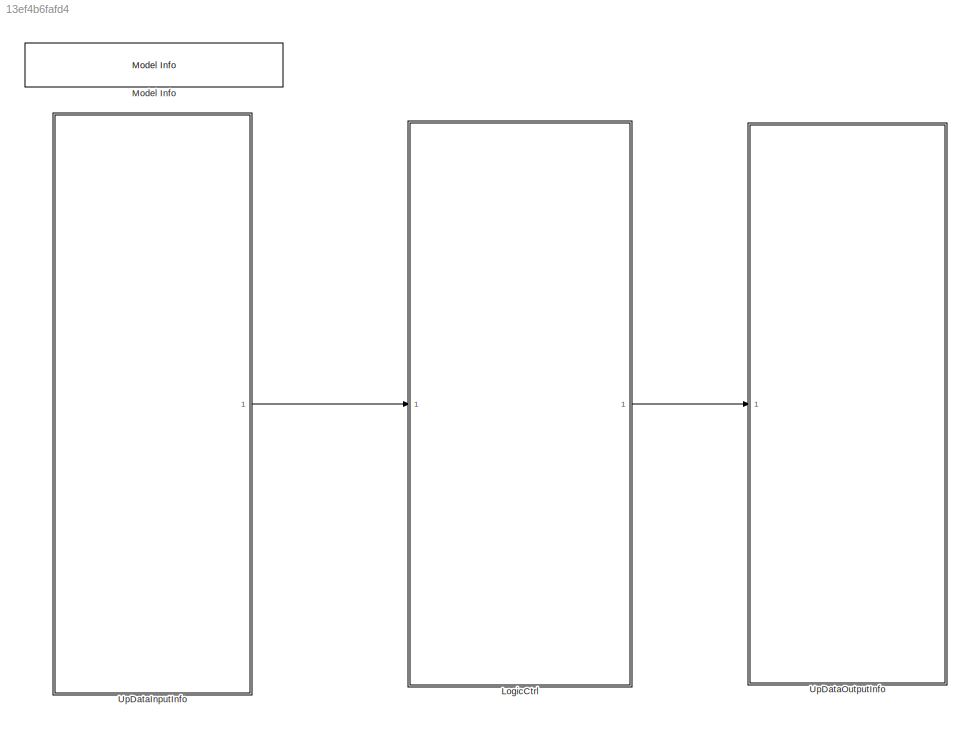
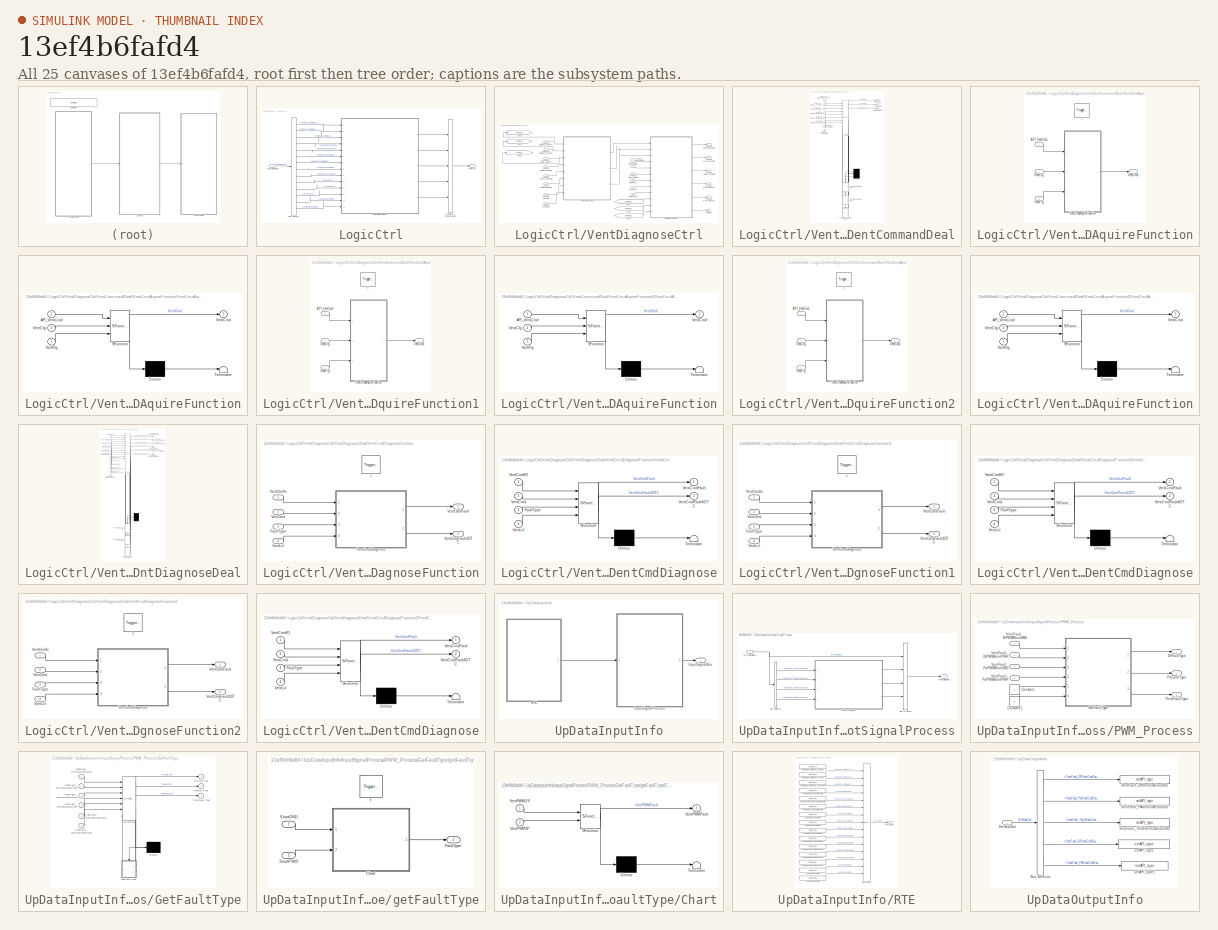
[diagram: thumbnail index - all 25 canvases of the model, root first then tree order]
MODEL slx_13ef4b6fafd4
KIND model
BLOCK [SubSystem] LogicCtrl
  Ports = [1, 1]
  Priority = 2
  RTWFcnNameOpts = Use subsystem name
  RTWSystemCode = Nonreusable function
  RequestExecContextInheritance = off
  TreatAsAtomicUnit = on
BLOCK [BusSelector] LogicCtrl/Bus Selector
  OutputAsBus = off
  OutputSignals = Rte_SignalBUs.VentFault_D_SimuIndex_DRVent,Rte_SignalBUs.VentFault_D_SimuIndex_PAVent,Rte_SignalBUs.VentFault_D_SimuIndex_ThirdVent,Rte_SignalBUs.VentFault_DriverEnableConfig,Rte_SignalBUs.VentFault_PassengerEnableConfig,Rte_SignalBUs.VentFault_ThirdEnableConfig,Rte_SignalBUs.VentFault_DrVentCmdIo,Rte_SignalBUs.VentFault_PaVentCmdIo,Rte_SignalBUs.VentFault_ThirdVentCmdIo,DrFaultType,PaFaultType,Th...<+80ch>
  Ports = [1, 14]
BLOCK [Outport] LogicCtrl/HeatOut
  IconDisplay = Port number
BLOCK [Inport] LogicCtrl/InputSignalBus
  IconDisplay = Port number
BLOCK [BusCreator] LogicCtrl/MainVent_OutputLvlSts
  DisplayOption = bar
  InheritFromInputs = on
  Inputs = 5
  Ports = [5, 1]
BLOCK [SubSystem] LogicCtrl/VentDiagnoseCtrl
  AttributesFormatString = %<Description>
  Description = 通风诊断逻辑处理
  Ports = [14, 5]
  RequestExecContextInheritance = off
BLOCK [Inport] LogicCtrl/VentDiagnoseCtrl/DrFaultType
  IconDisplay = Port number
  Port = 10
BLOCK [From] LogicCtrl/VentDiagnoseCtrl/From
  GotoTag = VentFault_D_SimuIndex_DRVent
BLOCK [From] LogicCtrl/VentDiagnoseCtrl/From1
  GotoTag = VentFault_D_SimuIndex_PAVent
BLOCK [From] LogicCtrl/VentDiagnoseCtrl/From2
  GotoTag = VentFault_D_SimuIndex_ThirdVent
BLOCK [Goto] LogicCtrl/VentDiagnoseCtrl/Goto
  GotoTag = VentFault_D_SimuIndex_DRVent
BLOCK [Goto] LogicCtrl/VentDiagnoseCtrl/Goto1
  GotoTag = VentFault_D_SimuIndex_PAVent
BLOCK [Goto] LogicCtrl/VentDiagnoseCtrl/Goto2
  GotoTag = VentFault_D_SimuIndex_ThirdVent
BLOCK [Inport] LogicCtrl/VentDiagnoseCtrl/PaFaultType
  IconDisplay = Port number
  Port = 11
BLOCK [Terminator] LogicCtrl/VentDiagnoseCtrl/Terminator
BLOCK [Inport] LogicCtrl/VentDiagnoseCtrl/ThirdFaultType
  IconDisplay = Port number
  Port = 12
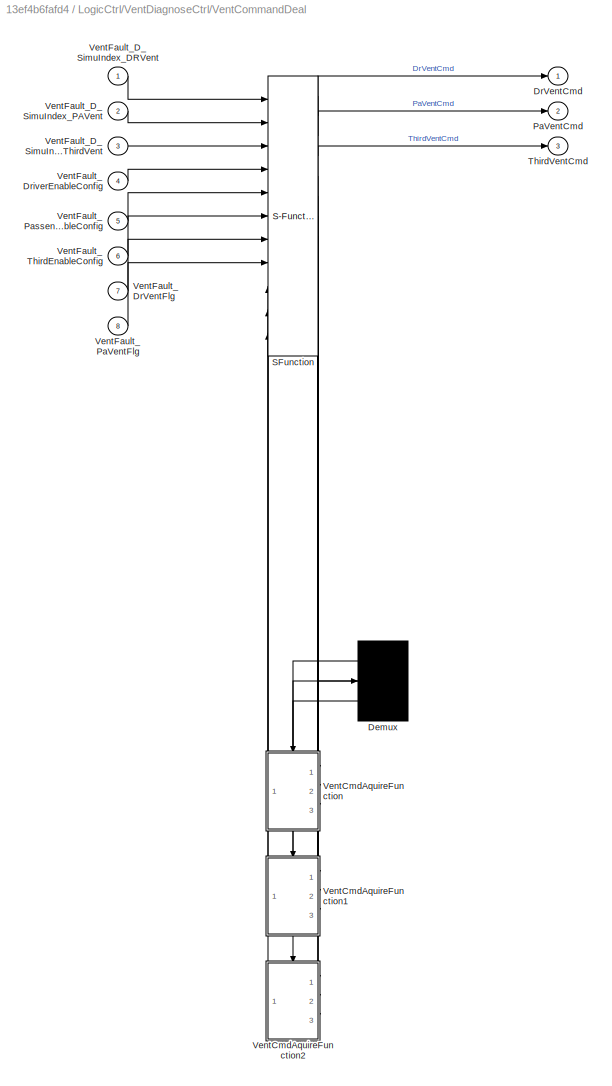
BLOCK [SubSystem] LogicCtrl/VentDiagnoseCtrl/VentCommandDeal
  ErrorFcn = Stateflow.Translate.translate
  PermitHierarchicalResolution = ExplicitOnly
  Ports = [8, 3]
  RequestExecContextInheritance = off
  SFBlockType = Chart
  TreatAsAtomicUnit = on
BLOCK [Demux] LogicCtrl/VentDiagnoseCtrl/VentCommandDeal/ Demux 
  Outputs = 3
  Ports = [1, 3]
BLOCK [S-Function] LogicCtrl/VentDiagnoseCtrl/VentCommandDeal/ SFunction 
  EnableBusSupport = on
  FunctionName = sf_sfun
  Parameters = TRUE
  PortCounts = [11 13]
  Ports = [11, 13]
  SFcnIsStateOwnerBlock = off
  SFunctionDeploymentMode = off
  Tag = Stateflow S-Function Appl_VentFault_CtrlModel 1
BLOCK [Outport] LogicCtrl/VentDiagnoseCtrl/VentCommandDeal/DrVentCmd
  IconDisplay = Port number
BLOCK [Outport] LogicCtrl/VentDiagnoseCtrl/VentCommandDeal/PaVentCmd
  IconDisplay = Port number
  Port = 2
BLOCK [Outport] LogicCtrl/VentDiagnoseCtrl/VentCommandDeal/ThirdVentCmd
  IconDisplay = Port number
  Port = 3
BLOCK [SubSystem] LogicCtrl/VentDiagnoseCtrl/VentCommandDeal/VentCmdAquireFunction
  Ports = [3, 1, 0, 1]
  PreDeleteFcn = Stateflow.SLINSF.SimulinkMan.removePreDeleteFcn
  RequestExecContextInheritance = off
  UndoDeleteFcn = Stateflow.SLINSF.SimulinkMan.restorePreDeleteFcn
BLOCK [Inport] LogicCtrl/VentDiagnoseCtrl/VentCommandDeal/VentCmdAquireFunction/API_VentCmd
  IconDisplay = Port number
BLOCK [Inport] LogicCtrl/VentDiagnoseCtrl/VentCommandDeal/VentCmdAquireFunction/VentCfg
  IconDisplay = Port number
  Port = 2
BLOCK [Outport] LogicCtrl/VentDiagnoseCtrl/VentCommandDeal/VentCmdAquireFunction/VentCmd
  IconDisplay = Port number
BLOCK [SubSystem] LogicCtrl/VentDiagnoseCtrl/VentCommandDeal/VentCmdAquireFunction/VentCmdAquireFunction
  ErrorFcn = Stateflow.Translate.translate
  PermitHierarchicalResolution = ExplicitOnly
  Ports = [3, 1]
  RequestExecContextInheritance = off
  SFBlockType = Chart
  TreatAsAtomicUnit = on
BLOCK [Demux] LogicCtrl/VentDiagnoseCtrl/VentCommandDeal/VentCmdAquireFunction/VentCmdAquireFunction/ Demux 
  Outputs = 1
  Ports = [1, 1]
BLOCK [S-Function] LogicCtrl/VentDiagnoseCtrl/VentCommandDeal/VentCmdAquireFunction/VentCmdAquireFunction/ SFunction 
  EnableBusSupport = off
  FunctionName = sf_sfun
  Parameters = FALSE,TRUE
  PortCounts = [3 2]
  Ports = [3, 2]
  SFcnIsStateOwnerBlock = off
  SFunctionDeploymentMode = off
  Tag = Stateflow S-Function Appl_VentFault_CtrlModel 2
BLOCK [Terminator] LogicCtrl/VentDiagnoseCtrl/VentCommandDeal/VentCmdAquireFunction/VentCmdAquireFunction/ Terminator 
BLOCK [Inport] LogicCtrl/VentDiagnoseCtrl/VentCommandDeal/VentCmdAquireFunction/VentCmdAquireFunction/API_VentCmd
  IconDisplay = Port number
BLOCK [Inport] LogicCtrl/VentDiagnoseCtrl/VentCommandDeal/VentCmdAquireFunction/VentCmdAquireFunction/VentCfg
  IconDisplay = Port number
  Port = 2
BLOCK [Outport] LogicCtrl/VentDiagnoseCtrl/VentCommandDeal/VentCmdAquireFunction/VentCmdAquireFunction/VentCmd
  IconDisplay = Port number
BLOCK [Inport] LogicCtrl/VentDiagnoseCtrl/VentCommandDeal/VentCmdAquireFunction/VentCmdAquireFunction/VentFlg
  IconDisplay = Port number
  Port = 3
BLOCK [Inport] LogicCtrl/VentDiagnoseCtrl/VentCommandDeal/VentCmdAquireFunction/VentFlg
  IconDisplay = Port number
  Port = 3
BLOCK [TriggerPort] LogicCtrl/VentDiagnoseCtrl/VentCommandDeal/VentCmdAquireFunction/f
  CopyFcn = Stateflow.SLINSF.SimulinkMan.removeBlockPreDeleteFcn
  Ports = []
  PreDeleteFcn = Stateflow.SLINSF.SimulinkMan.unsafePredeleteFcn
  StatesWhenEnabling = held
  TriggerType = function-call
  VariantControl = (inherit)
BLOCK [SubSystem] LogicCtrl/VentDiagnoseCtrl/VentCommandDeal/VentCmdAquireFunction1
  Ports = [3, 1, 0, 1]
  PreDeleteFcn = Stateflow.SLINSF.SimulinkMan.removePreDeleteFcn
  RequestExecContextInheritance = off
  UndoDeleteFcn = Stateflow.SLINSF.SimulinkMan.restorePreDeleteFcn
BLOCK [Inport] LogicCtrl/VentDiagnoseCtrl/VentCommandDeal/VentCmdAquireFunction1/API_VentCmd
  IconDisplay = Port number
BLOCK [Inport] LogicCtrl/VentDiagnoseCtrl/VentCommandDeal/VentCmdAquireFunction1/VentCfg
  IconDisplay = Port number
  Port = 2
BLOCK [Outport] LogicCtrl/VentDiagnoseCtrl/VentCommandDeal/VentCmdAquireFunction1/VentCmd
  IconDisplay = Port number
BLOCK [SubSystem] LogicCtrl/VentDiagnoseCtrl/VentCommandDeal/VentCmdAquireFunction1/VentCmdAquireFunction
  ErrorFcn = Stateflow.Translate.translate
  PermitHierarchicalResolution = ExplicitOnly
  Ports = [3, 1]
  RequestExecContextInheritance = off
  SFBlockType = Chart
  TreatAsAtomicUnit = on
BLOCK [Demux] LogicCtrl/VentDiagnoseCtrl/VentCommandDeal/VentCmdAquireFunction1/VentCmdAquireFunction/ Demux 
  Outputs = 1
  Ports = [1, 1]
BLOCK [S-Function] LogicCtrl/VentDiagnoseCtrl/VentCommandDeal/VentCmdAquireFunction1/VentCmdAquireFunction/ SFunction 
  EnableBusSupport = off
  FunctionName = sf_sfun
  Parameters = FALSE,TRUE
  PortCounts = [3 2]
  Ports = [3, 2]
  SFcnIsStateOwnerBlock = off
  SFunctionDeploymentMode = off
  Tag = Stateflow S-Function Appl_VentFault_CtrlModel 5
BLOCK [Terminator] LogicCtrl/VentDiagnoseCtrl/VentCommandDeal/VentCmdAquireFunction1/VentCmdAquireFunction/ Terminator 
BLOCK [Inport] LogicCtrl/VentDiagnoseCtrl/VentCommandDeal/VentCmdAquireFunction1/VentCmdAquireFunction/API_VentCmd
  IconDisplay = Port number
BLOCK [Inport] LogicCtrl/VentDiagnoseCtrl/VentCommandDeal/VentCmdAquireFunction1/VentCmdAquireFunction/VentCfg
  IconDisplay = Port number
  Port = 2
BLOCK [Outport] LogicCtrl/VentDiagnoseCtrl/VentCommandDeal/VentCmdAquireFunction1/VentCmdAquireFunction/VentCmd
  IconDisplay = Port number
BLOCK [Inport] LogicCtrl/VentDiagnoseCtrl/VentCommandDeal/VentCmdAquireFunction1/VentCmdAquireFunction/VentFlg
  IconDisplay = Port number
  Port = 3
BLOCK [Inport] LogicCtrl/VentDiagnoseCtrl/VentCommandDeal/VentCmdAquireFunction1/VentFlg
  IconDisplay = Port number
  Port = 3
BLOCK [TriggerPort] LogicCtrl/VentDiagnoseCtrl/VentCommandDeal/VentCmdAquireFunction1/f
  CopyFcn = Stateflow.SLINSF.SimulinkMan.removeBlockPreDeleteFcn
  Ports = []
  PreDeleteFcn = Stateflow.SLINSF.SimulinkMan.unsafePredeleteFcn
  StatesWhenEnabling = held
  TriggerType = function-call
  VariantControl = (inherit)
BLOCK [SubSystem] LogicCtrl/VentDiagnoseCtrl/VentCommandDeal/VentCmdAquireFunction2
  Ports = [3, 1, 0, 1]
  PreDeleteFcn = Stateflow.SLINSF.SimulinkMan.removePreDeleteFcn
  RequestExecContextInheritance = off
  UndoDeleteFcn = Stateflow.SLINSF.SimulinkMan.restorePreDeleteFcn
BLOCK [Inport] LogicCtrl/VentDiagnoseCtrl/VentCommandDeal/VentCmdAquireFunction2/API_VentCmd
  IconDisplay = Port number
BLOCK [Inport] LogicCtrl/VentDiagnoseCtrl/VentCommandDeal/VentCmdAquireFunction2/VentCfg
  IconDisplay = Port number
  Port = 2
BLOCK [Outport] LogicCtrl/VentDiagnoseCtrl/VentCommandDeal/VentCmdAquireFunction2/VentCmd
  IconDisplay = Port number
BLOCK [SubSystem] LogicCtrl/VentDiagnoseCtrl/VentCommandDeal/VentCmdAquireFunction2/VentCmdAquireFunction
  ErrorFcn = Stateflow.Translate.translate
  PermitHierarchicalResolution = ExplicitOnly
  Ports = [3, 1]
  RequestExecContextInheritance = off
  SFBlockType = Chart
  TreatAsAtomicUnit = on
BLOCK [Demux] LogicCtrl/VentDiagnoseCtrl/VentCommandDeal/VentCmdAquireFunction2/VentCmdAquireFunction/ Demux 
  Outputs = 1
  Ports = [1, 1]
BLOCK [S-Function] LogicCtrl/VentDiagnoseCtrl/VentCommandDeal/VentCmdAquireFunction2/VentCmdAquireFunction/ SFunction 
  EnableBusSupport = off
  FunctionName = sf_sfun
  Parameters = FALSE,TRUE
  PortCounts = [3 2]
  Ports = [3, 2]
  SFcnIsStateOwnerBlock = off
  SFunctionDeploymentMode = off
  Tag = Stateflow S-Function Appl_VentFault_CtrlModel 6
BLOCK [Terminator] LogicCtrl/VentDiagnoseCtrl/VentCommandDeal/VentCmdAquireFunction2/VentCmdAquireFunction/ Terminator 
BLOCK [Inport] LogicCtrl/VentDiagnoseCtrl/VentCommandDeal/VentCmdAquireFunction2/VentCmdAquireFunction/API_VentCmd
  IconDisplay = Port number
BLOCK [Inport] LogicCtrl/VentDiagnoseCtrl/VentCommandDeal/VentCmdAquireFunction2/VentCmdAquireFunction/VentCfg
  IconDisplay = Port number
  Port = 2
BLOCK [Outport] LogicCtrl/VentDiagnoseCtrl/VentCommandDeal/VentCmdAquireFunction2/VentCmdAquireFunction/VentCmd
  IconDisplay = Port number
BLOCK [Inport] LogicCtrl/VentDiagnoseCtrl/VentCommandDeal/VentCmdAquireFunction2/VentCmdAquireFunction/VentFlg
  IconDisplay = Port number
  Port = 3
BLOCK [Inport] LogicCtrl/VentDiagnoseCtrl/VentCommandDeal/VentCmdAquireFunction2/VentFlg
  IconDisplay = Port number
  Port = 3
BLOCK [TriggerPort] LogicCtrl/VentDiagnoseCtrl/VentCommandDeal/VentCmdAquireFunction2/f
  CopyFcn = Stateflow.SLINSF.SimulinkMan.removeBlockPreDeleteFcn
  Ports = []
  PreDeleteFcn = Stateflow.SLINSF.SimulinkMan.unsafePredeleteFcn
  StatesWhenEnabling = held
  TriggerType = function-call
  VariantControl = (inherit)
BLOCK [Inport] LogicCtrl/VentDiagnoseCtrl/VentCommandDeal/VentFault_D_SimuIndex_DRVent
  IconDisplay = Port number
BLOCK [Inport] LogicCtrl/VentDiagnoseCtrl/VentCommandDeal/VentFault_D_SimuIndex_PAVent
  IconDisplay = Port number
  Port = 2
BLOCK [Inport] LogicCtrl/VentDiagnoseCtrl/VentCommandDeal/VentFault_D_SimuIndex_ThirdVent
  IconDisplay = Port number
  Port = 3
BLOCK [Inport] LogicCtrl/VentDiagnoseCtrl/VentCommandDeal/VentFault_DrVentFlg
  IconDisplay = Port number
  Port = 7
BLOCK [Inport] LogicCtrl/VentDiagnoseCtrl/VentCommandDeal/VentFault_DriverEnableConfig
  IconDisplay = Port number
  Port = 4
BLOCK [Inport] LogicCtrl/VentDiagnoseCtrl/VentCommandDeal/VentFault_PaVentFlg
  IconDisplay = Port number
  Port = 8
BLOCK [Inport] LogicCtrl/VentDiagnoseCtrl/VentCommandDeal/VentFault_PassengerEnableConfig
  IconDisplay = Port number
  Port = 5
BLOCK [Inport] LogicCtrl/VentDiagnoseCtrl/VentCommandDeal/VentFault_ThirdEnableConfig
  IconDisplay = Port number
  Port = 6
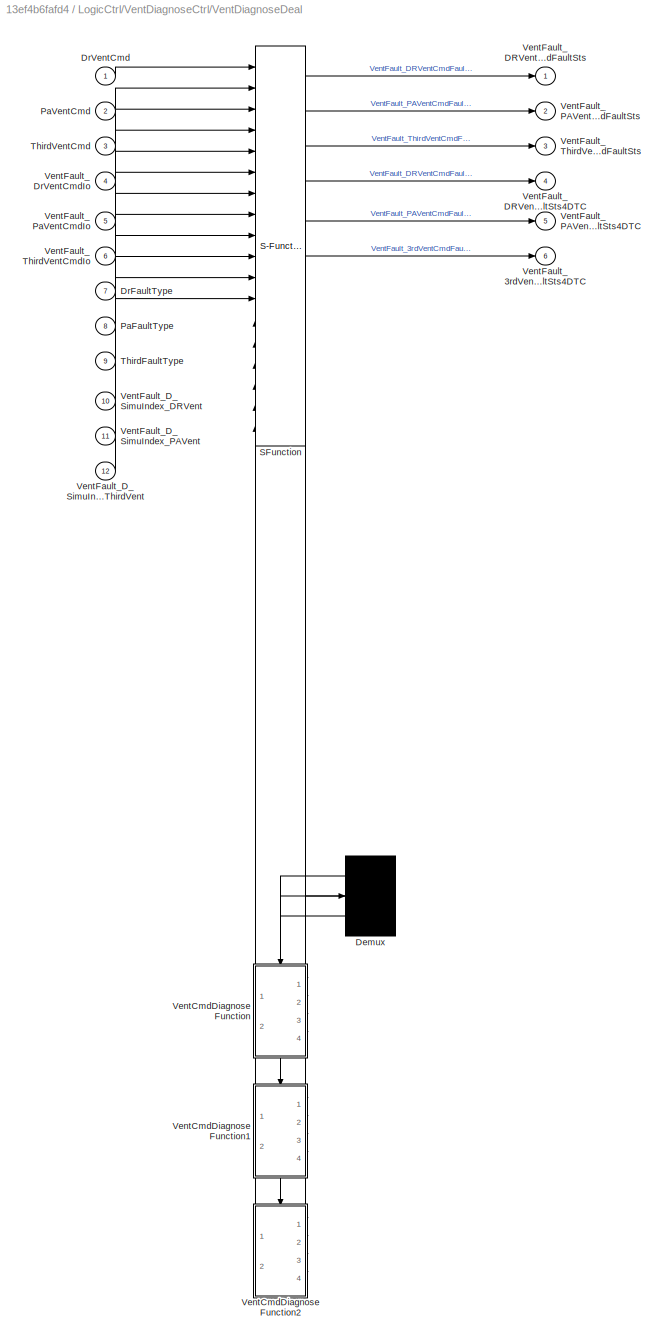
BLOCK [SubSystem] LogicCtrl/VentDiagnoseCtrl/VentDiagnoseDeal
  ErrorFcn = Stateflow.Translate.translate
  PermitHierarchicalResolution = ExplicitOnly
  Ports = [12, 6]
  RequestExecContextInheritance = off
  SFBlockType = Chart
  TreatAsAtomicUnit = on
BLOCK [Demux] LogicCtrl/VentDiagnoseCtrl/VentDiagnoseDeal/ Demux 
  Outputs = 3
  Ports = [1, 3]
BLOCK [S-Function] LogicCtrl/VentDiagnoseCtrl/VentDiagnoseDeal/ SFunction 
  EnableBusSupport = on
  FunctionName = sf_sfun
  PortCounts = [18 19]
  Ports = [18, 19]
  SFcnIsStateOwnerBlock = off
  SFunctionDeploymentMode = off
  Tag = Stateflow S-Function Appl_VentFault_CtrlModel 3
BLOCK [Inport] LogicCtrl/VentDiagnoseCtrl/VentDiagnoseDeal/DrFaultType
  IconDisplay = Port number
  Port = 7
BLOCK [Inport] LogicCtrl/VentDiagnoseCtrl/VentDiagnoseDeal/DrVentCmd
  IconDisplay = Port number
BLOCK [Inport] LogicCtrl/VentDiagnoseCtrl/VentDiagnoseDeal/PaFaultType
  IconDisplay = Port number
  Port = 8
BLOCK [Inport] LogicCtrl/VentDiagnoseCtrl/VentDiagnoseDeal/PaVentCmd
  IconDisplay = Port number
  Port = 2
BLOCK [Inport] LogicCtrl/VentDiagnoseCtrl/VentDiagnoseDeal/ThirdFaultType
  IconDisplay = Port number
  Port = 9
BLOCK [Inport] LogicCtrl/VentDiagnoseCtrl/VentDiagnoseDeal/ThirdVentCmd
  IconDisplay = Port number
  Port = 3
BLOCK [SubSystem] LogicCtrl/VentDiagnoseCtrl/VentDiagnoseDeal/VentCmdDiagnoseFunction
  Ports = [4, 2, 0, 1]
  PreDeleteFcn = Stateflow.SLINSF.SimulinkMan.removePreDeleteFcn
  RequestExecContextInheritance = off
  UndoDeleteFcn = Stateflow.SLINSF.SimulinkMan.restorePreDeleteFcn
BLOCK [Inport] LogicCtrl/VentDiagnoseCtrl/VentDiagnoseDeal/VentCmdDiagnoseFunction/FaultType
  IconDisplay = Port number
  Port = 3
BLOCK [Inport] LogicCtrl/VentDiagnoseCtrl/VentDiagnoseDeal/VentCmdDiagnoseFunction/VentCmd
  IconDisplay = Port number
  Port = 2
BLOCK [SubSystem] LogicCtrl/VentDiagnoseCtrl/VentDiagnoseDeal/VentCmdDiagnoseFunction/VentCmdDiagnose
  ErrorFcn = Stateflow.Translate.translate
  PermitHierarchicalResolution = ExplicitOnly
  Ports = [4, 2]
  RequestExecContextInheritance = off
  SFBlockType = Chart
  TreatAsAtomicUnit = on
BLOCK [Demux] LogicCtrl/VentDiagnoseCtrl/VentDiagnoseDeal/VentCmdDiagnoseFunction/VentCmdDiagnose/ Demux 
  Outputs = 1
  Ports = [1, 1]
BLOCK [S-Function] LogicCtrl/VentDiagnoseCtrl/VentDiagnoseDeal/VentCmdDiagnoseFunction/VentCmdDiagnose/ SFunction 
  EnableBusSupport = off
  FunctionName = sf_sfun
  Parameters = CAL_VentCmdOpenTime,CAL_VentCmdShortTime,FALSE,TRUE
  PortCounts = [4 3]
  Ports = [4, 3]
  SFcnIsStateOwnerBlock = off
  SFunctionDeploymentMode = off
  Tag = Stateflow S-Function Appl_VentFault_CtrlModel 4
BLOCK [Terminator] LogicCtrl/VentDiagnoseCtrl/VentDiagnoseDeal/VentCmdDiagnoseFunction/VentCmdDiagnose/ Terminator 
BLOCK [Inport] LogicCtrl/VentDiagnoseCtrl/VentDiagnoseDeal/VentCmdDiagnoseFunction/VentCmdDiagnose/FaultType
  IconDisplay = Port number
  Port = 3
BLOCK [Inport] LogicCtrl/VentDiagnoseCtrl/VentDiagnoseDeal/VentCmdDiagnoseFunction/VentCmdDiagnose/VentCmd
  IconDisplay = Port number
  Port = 2
BLOCK [Outport] LogicCtrl/VentDiagnoseCtrl/VentDiagnoseDeal/VentCmdDiagnoseFunction/VentCmdDiagnose/VentCmdFault
  IconDisplay = Port number
BLOCK [Outport] LogicCtrl/VentDiagnoseCtrl/VentDiagnoseDeal/VentCmdDiagnoseFunction/VentCmdDiagnose/VentCmdFault4DTC
  IconDisplay = Port number
  Port = 2
BLOCK [Inport] LogicCtrl/VentDiagnoseCtrl/VentDiagnoseDeal/VentCmdDiagnoseFunction/VentCmdDiagnose/VentCmdIO
  IconDisplay = Port number
BLOCK [Inport] LogicCtrl/VentDiagnoseCtrl/VentDiagnoseDeal/VentCmdDiagnoseFunction/VentCmdDiagnose/VentLvl
  IconDisplay = Port number
  Port = 4
BLOCK [Outport] LogicCtrl/VentDiagnoseCtrl/VentDiagnoseDeal/VentCmdDiagnoseFunction/VentCmdFault
  IconDisplay = Port number
BLOCK [Outport] LogicCtrl/VentDiagnoseCtrl/VentDiagnoseDeal/VentCmdDiagnoseFunction/VentCmdFault4DTC
  IconDisplay = Port number
  Port = 2
BLOCK [Inport] LogicCtrl/VentDiagnoseCtrl/VentDiagnoseDeal/VentCmdDiagnoseFunction/VentCmdIo
  IconDisplay = Port number
BLOCK [Inport] LogicCtrl/VentDiagnoseCtrl/VentDiagnoseDeal/VentCmdDiagnoseFunction/VentLvl
  IconDisplay = Port number
  Port = 4
BLOCK [TriggerPort] LogicCtrl/VentDiagnoseCtrl/VentDiagnoseDeal/VentCmdDiagnoseFunction/f
  CopyFcn = Stateflow.SLINSF.SimulinkMan.removeBlockPreDeleteFcn
  Ports = []
  PreDeleteFcn = Stateflow.SLINSF.SimulinkMan.unsafePredeleteFcn
  StatesWhenEnabling = held
  TriggerType = function-call
  VariantControl = (inherit)
BLOCK [SubSystem] LogicCtrl/VentDiagnoseCtrl/VentDiagnoseDeal/VentCmdDiagnoseFunction1
  Ports = [4, 2, 0, 1]
  PreDeleteFcn = Stateflow.SLINSF.SimulinkMan.removePreDeleteFcn
  RequestExecContextInheritance = off
  UndoDeleteFcn = Stateflow.SLINSF.SimulinkMan.restorePreDeleteFcn
BLOCK [Inport] LogicCtrl/VentDiagnoseCtrl/VentDiagnoseDeal/VentCmdDiagnoseFunction1/FaultType
  IconDisplay = Port number
  Port = 3
BLOCK [Inport] LogicCtrl/VentDiagnoseCtrl/VentDiagnoseDeal/VentCmdDiagnoseFunction1/VentCmd
  IconDisplay = Port number
  Port = 2
BLOCK [SubSystem] LogicCtrl/VentDiagnoseCtrl/VentDiagnoseDeal/VentCmdDiagnoseFunction1/VentCmdDiagnose
  ErrorFcn = Stateflow.Translate.translate
  PermitHierarchicalResolution = ExplicitOnly
  Ports = [4, 2]
  RequestExecContextInheritance = off
  SFBlockType = Chart
  TreatAsAtomicUnit = on
BLOCK [Demux] LogicCtrl/VentDiagnoseCtrl/VentDiagnoseDeal/VentCmdDiagnoseFunction1/VentCmdDiagnose/ Demux 
  Outputs = 1
  Ports = [1, 1]
BLOCK [S-Function] LogicCtrl/VentDiagnoseCtrl/VentDiagnoseDeal/VentCmdDiagnoseFunction1/VentCmdDiagnose/ SFunction 
  EnableBusSupport = off
  FunctionName = sf_sfun
  Parameters = CAL_VentCmdOpenTime,CAL_VentCmdShortTime,FALSE,TRUE
  PortCounts = [4 3]
  Ports = [4, 3]
  SFcnIsStateOwnerBlock = off
  SFunctionDeploymentMode = off
  Tag = Stateflow S-Function Appl_VentFault_CtrlModel 7
BLOCK [Terminator] LogicCtrl/VentDiagnoseCtrl/VentDiagnoseDeal/VentCmdDiagnoseFunction1/VentCmdDiagnose/ Terminator 
BLOCK [Inport] LogicCtrl/VentDiagnoseCtrl/VentDiagnoseDeal/VentCmdDiagnoseFunction1/VentCmdDiagnose/FaultType
  IconDisplay = Port number
  Port = 3
BLOCK [Inport] LogicCtrl/VentDiagnoseCtrl/VentDiagnoseDeal/VentCmdDiagnoseFunction1/VentCmdDiagnose/VentCmd
  IconDisplay = Port number
  Port = 2
BLOCK [Outport] LogicCtrl/VentDiagnoseCtrl/VentDiagnoseDeal/VentCmdDiagnoseFunction1/VentCmdDiagnose/VentCmdFault
  IconDisplay = Port number
BLOCK [Outport] LogicCtrl/VentDiagnoseCtrl/VentDiagnoseDeal/VentCmdDiagnoseFunction1/VentCmdDiagnose/VentCmdFault4DTC
  IconDisplay = Port number
  Port = 2
BLOCK [Inport] LogicCtrl/VentDiagnoseCtrl/VentDiagnoseDeal/VentCmdDiagnoseFunction1/VentCmdDiagnose/VentCmdIO
  IconDisplay = Port number
BLOCK [Inport] LogicCtrl/VentDiagnoseCtrl/VentDiagnoseDeal/VentCmdDiagnoseFunction1/VentCmdDiagnose/VentLvl
  IconDisplay = Port number
  Port = 4
BLOCK [Outport] LogicCtrl/VentDiagnoseCtrl/VentDiagnoseDeal/VentCmdDiagnoseFunction1/VentCmdFault
  IconDisplay = Port number
BLOCK [Outport] LogicCtrl/VentDiagnoseCtrl/VentDiagnoseDeal/VentCmdDiagnoseFunction1/VentCmdFault4DTC
  IconDisplay = Port number
  Port = 2
BLOCK [Inport] LogicCtrl/VentDiagnoseCtrl/VentDiagnoseDeal/VentCmdDiagnoseFunction1/VentCmdIo
  IconDisplay = Port number
BLOCK [Inport] LogicCtrl/VentDiagnoseCtrl/VentDiagnoseDeal/VentCmdDiagnoseFunction1/VentLvl
  IconDisplay = Port number
  Port = 4
BLOCK [TriggerPort] LogicCtrl/VentDiagnoseCtrl/VentDiagnoseDeal/VentCmdDiagnoseFunction1/f
  CopyFcn = Stateflow.SLINSF.SimulinkMan.removeBlockPreDeleteFcn
  Ports = []
  PreDeleteFcn = Stateflow.SLINSF.SimulinkMan.unsafePredeleteFcn
  StatesWhenEnabling = held
  TriggerType = function-call
  VariantControl = (inherit)
BLOCK [SubSystem] LogicCtrl/VentDiagnoseCtrl/VentDiagnoseDeal/VentCmdDiagnoseFunction2
  Ports = [4, 2, 0, 1]
  PreDeleteFcn = Stateflow.SLINSF.SimulinkMan.removePreDeleteFcn
  RequestExecContextInheritance = off
  UndoDeleteFcn = Stateflow.SLINSF.SimulinkMan.restorePreDeleteFcn
BLOCK [Inport] LogicCtrl/VentDiagnoseCtrl/VentDiagnoseDeal/VentCmdDiagnoseFunction2/FaultType
  IconDisplay = Port number
  Port = 3
BLOCK [Inport] LogicCtrl/VentDiagnoseCtrl/VentDiagnoseDeal/VentCmdDiagnoseFunction2/VentCmd
  IconDisplay = Port number
  Port = 2
BLOCK [SubSystem] LogicCtrl/VentDiagnoseCtrl/VentDiagnoseDeal/VentCmdDiagnoseFunction2/VentCmdDiagnose
  ErrorFcn = Stateflow.Translate.translate
  PermitHierarchicalResolution = ExplicitOnly
  Ports = [4, 2]
  RequestExecContextInheritance = off
  SFBlockType = Chart
  TreatAsAtomicUnit = on
BLOCK [Demux] LogicCtrl/VentDiagnoseCtrl/VentDiagnoseDeal/VentCmdDiagnoseFunction2/VentCmdDiagnose/ Demux 
  Outputs = 1
  Ports = [1, 1]
BLOCK [S-Function] LogicCtrl/VentDiagnoseCtrl/VentDiagnoseDeal/VentCmdDiagnoseFunction2/VentCmdDiagnose/ SFunction 
  EnableBusSupport = off
  FunctionName = sf_sfun
  Parameters = CAL_VentCmdOpenTime,CAL_VentCmdShortTime,FALSE,TRUE
  PortCounts = [4 3]
  Ports = [4, 3]
  SFcnIsStateOwnerBlock = off
  SFunctionDeploymentMode = off
  Tag = Stateflow S-Function Appl_VentFault_CtrlModel 8
BLOCK [Terminator] LogicCtrl/VentDiagnoseCtrl/VentDiagnoseDeal/VentCmdDiagnoseFunction2/VentCmdDiagnose/ Terminator 
BLOCK [Inport] LogicCtrl/VentDiagnoseCtrl/VentDiagnoseDeal/VentCmdDiagnoseFunction2/VentCmdDiagnose/FaultType
  IconDisplay = Port number
  Port = 3
BLOCK [Inport] LogicCtrl/VentDiagnoseCtrl/VentDiagnoseDeal/VentCmdDiagnoseFunction2/VentCmdDiagnose/VentCmd
  IconDisplay = Port number
  Port = 2
BLOCK [Outport] LogicCtrl/VentDiagnoseCtrl/VentDiagnoseDeal/VentCmdDiagnoseFunction2/VentCmdDiagnose/VentCmdFault
  IconDisplay = Port number
BLOCK [Outport] LogicCtrl/VentDiagnoseCtrl/VentDiagnoseDeal/VentCmdDiagnoseFunction2/VentCmdDiagnose/VentCmdFault4DTC
  IconDisplay = Port number
  Port = 2
BLOCK [Inport] LogicCtrl/VentDiagnoseCtrl/VentDiagnoseDeal/VentCmdDiagnoseFunction2/VentCmdDiagnose/VentCmdIO
  IconDisplay = Port number
BLOCK [Inport] LogicCtrl/VentDiagnoseCtrl/VentDiagnoseDeal/VentCmdDiagnoseFunction2/VentCmdDiagnose/VentLvl
  IconDisplay = Port number
  Port = 4
BLOCK [Outport] LogicCtrl/VentDiagnoseCtrl/VentDiagnoseDeal/VentCmdDiagnoseFunction2/VentCmdFault
  IconDisplay = Port number
BLOCK [Outport] LogicCtrl/VentDiagnoseCtrl/VentDiagnoseDeal/VentCmdDiagnoseFunction2/VentCmdFault4DTC
  IconDisplay = Port number
  Port = 2
BLOCK [Inport] LogicCtrl/VentDiagnoseCtrl/VentDiagnoseDeal/VentCmdDiagnoseFunction2/VentCmdIo
  IconDisplay = Port number
BLOCK [Inport] LogicCtrl/VentDiagnoseCtrl/VentDiagnoseDeal/VentCmdDiagnoseFunction2/VentLvl
  IconDisplay = Port number
  Port = 4
BLOCK [TriggerPort] LogicCtrl/VentDiagnoseCtrl/VentDiagnoseDeal/VentCmdDiagnoseFunction2/f
  CopyFcn = Stateflow.SLINSF.SimulinkMan.removeBlockPreDeleteFcn
  Ports = []
  PreDeleteFcn = Stateflow.SLINSF.SimulinkMan.unsafePredeleteFcn
  StatesWhenEnabling = held
  TriggerType = function-call
  VariantControl = (inherit)
BLOCK [Outport] LogicCtrl/VentDiagnoseCtrl/VentDiagnoseDeal/VentFault_3rdVentCmdFaultSts4DTC
  IconDisplay = Port number
  Port = 6
BLOCK [Outport] LogicCtrl/VentDiagnoseCtrl/VentDiagnoseDeal/VentFault_DRVentCmdFaultSts
  IconDisplay = Port number
BLOCK [Outport] LogicCtrl/VentDiagnoseCtrl/VentDiagnoseDeal/VentFault_DRVentCmdFaultSts4DTC
  IconDisplay = Port number
  Port = 4
BLOCK [Inport] LogicCtrl/VentDiagnoseCtrl/VentDiagnoseDeal/VentFault_D_SimuIndex_DRVent
  IconDisplay = Port number
  Port = 10
BLOCK [Inport] LogicCtrl/VentDiagnoseCtrl/VentDiagnoseDeal/VentFault_D_SimuIndex_PAVent
  IconDisplay = Port number
  Port = 11
BLOCK [Inport] LogicCtrl/VentDiagnoseCtrl/VentDiagnoseDeal/VentFault_D_SimuIndex_ThirdVent
  IconDisplay = Port number
  Port = 12
BLOCK [Inport] LogicCtrl/VentDiagnoseCtrl/VentDiagnoseDeal/VentFault_DrVentCmdIo
  IconDisplay = Port number
  Port = 4
BLOCK [Outport] LogicCtrl/VentDiagnoseCtrl/VentDiagnoseDeal/VentFault_PAVentCmdFaultSts
  IconDisplay = Port number
  Port = 2
BLOCK [Outport] LogicCtrl/VentDiagnoseCtrl/VentDiagnoseDeal/VentFault_PAVentCmdFaultSts4DTC
  IconDisplay = Port number
  Port = 5
BLOCK [Inport] LogicCtrl/VentDiagnoseCtrl/VentDiagnoseDeal/VentFault_PaVentCmdIo
  IconDisplay = Port number
  Port = 5
BLOCK [Outport] LogicCtrl/VentDiagnoseCtrl/VentDiagnoseDeal/VentFault_ThirdVentCmdFaultSts
  IconDisplay = Port number
  Port = 3
BLOCK [Inport] LogicCtrl/VentDiagnoseCtrl/VentDiagnoseDeal/VentFault_ThirdVentCmdIo
  IconDisplay = Port number
  Port = 6
BLOCK [Outport] LogicCtrl/VentDiagnoseCtrl/VentFault_DRVentCmdFaultSts
  IconDisplay = Port number
BLOCK [Outport] LogicCtrl/VentDiagnoseCtrl/VentFault_DRVentCmdFaultSts4DTC
  IconDisplay = Port number
  Port = 4
BLOCK [Inport] LogicCtrl/VentDiagnoseCtrl/VentFault_D_SimuIndex_DRVent
  IconDisplay = Port number
BLOCK [Inport] LogicCtrl/VentDiagnoseCtrl/VentFault_D_SimuIndex_PAVent
  IconDisplay = Port number
  Port = 2
BLOCK [Inport] LogicCtrl/VentDiagnoseCtrl/VentFault_D_SimuIndex_ThirdVent
  IconDisplay = Port number
  Port = 3
BLOCK [Inport] LogicCtrl/VentDiagnoseCtrl/VentFault_DrVentCmdIo
  IconDisplay = Port number
  Port = 7
BLOCK [Inport] LogicCtrl/VentDiagnoseCtrl/VentFault_DrVentFlg
  IconDisplay = Port number
  Port = 13
BLOCK [Inport] LogicCtrl/VentDiagnoseCtrl/VentFault_DriverEnableConfig
  IconDisplay = Port number
  Port = 4
BLOCK [Outport] LogicCtrl/VentDiagnoseCtrl/VentFault_PAVentCmdFaultSts
  IconDisplay = Port number
  Port = 2
BLOCK [Outport] LogicCtrl/VentDiagnoseCtrl/VentFault_PAVentCmdFaultSts4DTC
  IconDisplay = Port number
  Port = 5
BLOCK [Inport] LogicCtrl/VentDiagnoseCtrl/VentFault_PaVentCmdIo
  IconDisplay = Port number
  Port = 8
BLOCK [Inport] LogicCtrl/VentDiagnoseCtrl/VentFault_PaVentFlg
  IconDisplay = Port number
  Port = 14
BLOCK [Inport] LogicCtrl/VentDiagnoseCtrl/VentFault_PassengerEnableConfig
  IconDisplay = Port number
  Port = 5
BLOCK [Inport] LogicCtrl/VentDiagnoseCtrl/VentFault_ThirdEnableConfig
  IconDisplay = Port number
  Port = 6
BLOCK [Outport] LogicCtrl/VentDiagnoseCtrl/VentFault_ThirdVentCmdFaultSts
  IconDisplay = Port number
  Port = 3
BLOCK [Inport] LogicCtrl/VentDiagnoseCtrl/VentFault_ThirdVentCmdIo
  IconDisplay = Port number
  Port = 9
BLOCK [Reference] Model Info  REF=simulink/Model-Wide
Utilities/Model Info
  Ports = []
  SourceBlock = simulink/Model-Wide\nUtilities/Model Info
  SourceProductBaseCode = SL
  SourceProductName = Simulink
  SourceType = CMBlock
BLOCK [SubSystem] UpDataInputInfo
  Ports = [0, 1]
  Priority = 1
  RTWFcnNameOpts = Use subsystem name
  RTWSystemCode = Nonreusable function
  RequestExecContextInheritance = off
  TreatAsAtomicUnit = on
BLOCK [Outport] UpDataInputInfo/InputSignalBus
  IconDisplay = Port number
BLOCK [SubSystem] UpDataInputInfo/InputSignalProcess
  AttributesFormatString = %<Description>
  Description = 数据处理
  Ports = [1, 1]
  RTWFcnNameOpts = Use subsystem name
  RTWSystemCode = Nonreusable function
  RequestExecContextInheritance = off
BLOCK [BusCreator] UpDataInputInfo/InputSignalProcess/Bus Creator
  DisplayOption = bar
  InheritFromInputs = on
  Inputs = 4
  Ports = [4, 1]
BLOCK [BusSelector] UpDataInputInfo/InputSignalProcess/Bus Selector
  OutputAsBus = off
  OutputSignals = VentFault_DrPWMShortGND,VentFault_DrPWMShortPWR,VentFault_PaPWMShortGND,VentFault_PaPWMShortPWR
  Ports = [1, 4]
BLOCK [Outport] UpDataInputInfo/InputSignalProcess/InputSignalBus
  IconDisplay = Port number
BLOCK [SubSystem] UpDataInputInfo/InputSignalProcess/PWM_Process
  AttributesFormatString = %<Description>
  Description = PWM诊断DTC处理（确认当前PWM有哪个DTC）
  Ports = [4, 3]
  RequestExecContextInheritance = off
BLOCK [Constant] UpDataInputInfo/InputSignalProcess/PWM_Process/Constant
  Value = 0
BLOCK [Constant] UpDataInputInfo/InputSignalProcess/PWM_Process/Constant1
  Value = 0
BLOCK [Outport] UpDataInputInfo/InputSignalProcess/PWM_Process/DrFaultType
  IconDisplay = Port number
BLOCK [SubSystem] UpDataInputInfo/InputSignalProcess/PWM_Process/GetFaultType
  ErrorFcn = Stateflow.Translate.translate
  PermitHierarchicalResolution = ExplicitOnly
  Ports = [6, 3]
  RequestExecContextInheritance = off
  SFBlockType = Chart
  TreatAsAtomicUnit = on
BLOCK [Demux] UpDataInputInfo/InputSignalProcess/PWM_Process/GetFaultType/ Demux 
  Outputs = 1
  Ports = [1, 1]
BLOCK [S-Function] UpDataInputInfo/InputSignalProcess/PWM_Process/GetFaultType/ SFunction 
  EnableBusSupport = on
  FunctionName = sf_sfun
  PortCounts = [7 6]
  Ports = [7, 6]
  SFcnIsStateOwnerBlock = off
  SFunctionDeploymentMode = off
  Tag = Stateflow S-Function Appl_VentFault_CtrlModel 15
BLOCK [Outport] UpDataInputInfo/InputSignalProcess/PWM_Process/GetFaultType/DrFaultType
  IconDisplay = Port number
BLOCK [Outport] UpDataInputInfo/InputSignalProcess/PWM_Process/GetFaultType/PaFaultType
  IconDisplay = Port number
  Port = 2
BLOCK [Outport] UpDataInputInfo/InputSignalProcess/PWM_Process/GetFaultType/ThirdFaultType
  IconDisplay = Port number
  Port = 3
BLOCK [Inport] UpDataInputInfo/InputSignalProcess/PWM_Process/GetFaultType/VentFault_3rdPWMShortGND
  IconDisplay = Port number
  Port = 5
BLOCK [Inport] UpDataInputInfo/InputSignalProcess/PWM_Process/GetFaultType/VentFault_3rdPWMShortPWR
  IconDisplay = Port number
  Port = 6
BLOCK [Inport] UpDataInputInfo/InputSignalProcess/PWM_Process/GetFaultType/VentFault_DrPWMShortGND
  IconDisplay = Port number
BLOCK [Inport] UpDataInputInfo/InputSignalProcess/PWM_Process/GetFaultType/VentFault_DrPWMShortPWR
  IconDisplay = Port number
  Port = 2
BLOCK [Inport] UpDataInputInfo/InputSignalProcess/PWM_Process/GetFaultType/VentFault_PaPWMShortGND
  IconDisplay = Port number
  Port = 3
BLOCK [Inport] UpDataInputInfo/InputSignalProcess/PWM_Process/GetFaultType/VentFault_PaPWMShortPWR
  IconDisplay = Port number
  Port = 4
BLOCK [SubSystem] UpDataInputInfo/InputSignalProcess/PWM_Process/GetFaultType/getFaultType
  Ports = [2, 1, 0, 1]
  PreDeleteFcn = Stateflow.SLINSF.SimulinkMan.removePreDeleteFcn
  RequestExecContextInheritance = off
  UndoDeleteFcn = Stateflow.SLINSF.SimulinkMan.restorePreDeleteFcn
BLOCK [SubSystem] UpDataInputInfo/InputSignalProcess/PWM_Process/GetFaultType/getFaultType/Chart
  ErrorFcn = Stateflow.Translate.translate
  PermitHierarchicalResolution = ExplicitOnly
  Ports = [2, 1]
  RequestExecContextInheritance = off
  SFBlockType = Chart
  TreatAsAtomicUnit = on
BLOCK [Demux] UpDataInputInfo/InputSignalProcess/PWM_Process/GetFaultType/getFaultType/Chart/ Demux 
  Outputs = 1
  Ports = [1, 1]
BLOCK [S-Function] UpDataInputInfo/InputSignalProcess/PWM_Process/GetFaultType/getFaultType/Chart/ SFunction 
  EnableBusSupport = off
  FunctionName = sf_sfun
  Parameters = TRUE
  PortCounts = [2 2]
  Ports = [2, 2]
  SFcnIsStateOwnerBlock = off
  SFunctionDeploymentMode = off
  Tag = Stateflow S-Function Appl_VentFault_CtrlModel 11
BLOCK [Terminator] UpDataInputInfo/InputSignalProcess/PWM_Process/GetFaultType/getFaultType/Chart/ Terminator 
BLOCK [Outport] UpDataInputInfo/InputSignalProcess/PWM_Process/GetFaultType/getFaultType/Chart/VentPWMFault
  IconDisplay = Port number
BLOCK [Inport] UpDataInputInfo/InputSignalProcess/PWM_Process/GetFaultType/getFaultType/Chart/VentPWMGS
  IconDisplay = Port number
BLOCK [Inport] UpDataInputInfo/InputSignalProcess/PWM_Process/GetFaultType/getFaultType/Chart/VentPWMSP
  IconDisplay = Port number
  Port = 2
BLOCK [Outport] UpDataInputInfo/InputSignalProcess/PWM_Process/GetFaultType/getFaultType/FaultType
  IconDisplay = Port number
BLOCK [Inport] UpDataInputInfo/InputSignalProcess/PWM_Process/GetFaultType/getFaultType/ShortGND
  IconDisplay = Port number
BLOCK [Inport] UpDataInputInfo/InputSignalProcess/PWM_Process/GetFaultType/getFaultType/ShortPWR
  IconDisplay = Port number
  Port = 2
BLOCK [TriggerPort] UpDataInputInfo/InputSignalProcess/PWM_Process/GetFaultType/getFaultType/f
  CopyFcn = Stateflow.SLINSF.SimulinkMan.removeBlockPreDeleteFcn
  Ports = []
  PreDeleteFcn = Stateflow.SLINSF.SimulinkMan.unsafePredeleteFcn
  StatesWhenEnabling = held
  TriggerType = function-call
  VariantControl = (inherit)
BLOCK [Outport] UpDataInputInfo/InputSignalProcess/PWM_Process/PaFaultType
  IconDisplay = Port number
  Port = 2
BLOCK [Outport] UpDataInputInfo/InputSignalProcess/PWM_Process/ThirdFaultType
  IconDisplay = Port number
  Port = 3
BLOCK [Inport] UpDataInputInfo/InputSignalProcess/PWM_Process/VentFault_DrPWMShortGND
  IconDisplay = Port number
BLOCK [Inport] UpDataInputInfo/InputSignalProcess/PWM_Process/VentFault_DrPWMShortPWR
  IconDisplay = Port number
  Port = 2
BLOCK [Inport] UpDataInputInfo/InputSignalProcess/PWM_Process/VentFault_PaPWMShortGND
  IconDisplay = Port number
  Port = 3
BLOCK [Inport] UpDataInputInfo/InputSignalProcess/PWM_Process/VentFault_PaPWMShortPWR
  IconDisplay = Port number
  Port = 4
BLOCK [Inport] UpDataInputInfo/InputSignalProcess/Rte_SignalBUs
  IconDisplay = Port number
BLOCK [SubSystem] UpDataInputInfo/RTE
  AttributesFormatString = %<Description>
  Description = 接口自动生成
  Ports = [0, 1]
  RTWFcnNameOpts = Use subsystem name
  RTWSystemCode = Nonreusable function
  RequestExecContextInheritance = off
  TreatAsAtomicUnit = on
BLOCK [BusCreator] UpDataInputInfo/RTE/Bus Creator
  DisplayOption = bar
  InheritFromInputs = on
  Inputs = 15
  Ports = [15, 1]
BLOCK [Outport] UpDataInputInfo/RTE/RTE_Signal
  IconDisplay = Port number
BLOCK [Reference] UpDataInputInfo/RTE/VentFault_D_SimuIndex_DRVent  REF=DareLib/Dare/getAPI_type
  AttributesFormatString = %<g_funcname>
  Ports = [0, 1]
  SourceBlock = DareLib/Dare/getAPI_type
  SourceProductName = Dare Library
  SourceType = Dare Custom
BLOCK [Reference] UpDataInputInfo/RTE/VentFault_D_SimuIndex_PAVent  REF=DareLib/Dare/getAPI_type
  AttributesFormatString = %<g_funcname>
  Ports = [0, 1]
  SourceBlock = DareLib/Dare/getAPI_type
  SourceProductName = Dare Library
  SourceType = Dare Custom
BLOCK [Reference] UpDataInputInfo/RTE/VentFault_D_SimuIndex_ThirdVent  REF=DareLib/Dare/getAPI_type
  AttributesFormatString = %<g_funcname>
  Ports = [0, 1]
  SourceBlock = DareLib/Dare/getAPI_type
  SourceProductName = Dare Library
  SourceType = Dare Custom
BLOCK [Reference] UpDataInputInfo/RTE/VentFault_DrPWMShortGND  REF=DareLib/Dare/getAPI_type
  AttributesFormatString = %<g_funcname>
  Ports = [0, 1]
  SourceBlock = DareLib/Dare/getAPI_type
  SourceProductName = Dare Library
  SourceType = Dare Custom
BLOCK [Reference] UpDataInputInfo/RTE/VentFault_DrPWMShortPWR  REF=DareLib/Dare/getAPI_type
  AttributesFormatString = %<g_funcname>
  Ports = [0, 1]
  SourceBlock = DareLib/Dare/getAPI_type
  SourceProductName = Dare Library
  SourceType = Dare Custom
BLOCK [Reference] UpDataInputInfo/RTE/VentFault_DrVentCmdIo  REF=DareLib/Dare/getAPI_type
  AttributesFormatString = %<g_funcname>
  Ports = [0, 1]
  SourceBlock = DareLib/Dare/getAPI_type
  SourceProductName = Dare Library
  SourceType = Dare Custom
BLOCK [Reference] UpDataInputInfo/RTE/VentFault_DrVentFlg  REF=DareLib/Dare/getAPI_type
  AttributesFormatString = %<g_funcname>
  Ports = [0, 1]
  SourceBlock = DareLib/Dare/getAPI_type
  SourceProductName = Dare Library
  SourceType = Dare Custom
BLOCK [Reference] UpDataInputInfo/RTE/VentFault_DriverEnableConfig  REF=DareLib/Dare/getAPI_type
  AttributesFormatString = %<g_funcname>
  Ports = [0, 1]
  SourceBlock = DareLib/Dare/getAPI_type
  SourceProductName = Dare Library
  SourceType = Dare Custom
BLOCK [Reference] UpDataInputInfo/RTE/VentFault_PaPWMShortGND  REF=DareLib/Dare/getAPI_type
  AttributesFormatString = %<g_funcname>
  Ports = [0, 1]
  SourceBlock = DareLib/Dare/getAPI_type
  SourceProductName = Dare Library
  SourceType = Dare Custom
BLOCK [Reference] UpDataInputInfo/RTE/VentFault_PaPWMShortPWR  REF=DareLib/Dare/getAPI_type
  AttributesFormatString = %<g_funcname>
  Ports = [0, 1]
  SourceBlock = DareLib/Dare/getAPI_type
  SourceProductName = Dare Library
  SourceType = Dare Custom
BLOCK [Reference] UpDataInputInfo/RTE/VentFault_PaVentCmdIo  REF=DareLib/Dare/getAPI_type
  AttributesFormatString = %<g_funcname>
  Ports = [0, 1]
  SourceBlock = DareLib/Dare/getAPI_type
  SourceProductName = Dare Library
  SourceType = Dare Custom
BLOCK [Reference] UpDataInputInfo/RTE/VentFault_PaVentFlg  REF=DareLib/Dare/getAPI_type
  AttributesFormatString = %<g_funcname>
  Ports = [0, 1]
  SourceBlock = DareLib/Dare/getAPI_type
  SourceProductName = Dare Library
  SourceType = Dare Custom
BLOCK [Reference] UpDataInputInfo/RTE/VentFault_PassengerEnableConfig  REF=DareLib/Dare/getAPI_type
  AttributesFormatString = %<g_funcname>
  Ports = [0, 1]
  SourceBlock = DareLib/Dare/getAPI_type
  SourceProductName = Dare Library
  SourceType = Dare Custom
BLOCK [Reference] UpDataInputInfo/RTE/VentFault_ThirdEnableConfig  REF=DareLib/Dare/getAPI_type
  AttributesFormatString = %<g_funcname>
  Ports = [0, 1]
  SourceBlock = DareLib/Dare/getAPI_type
  SourceProductName = Dare Library
  SourceType = Dare Custom
BLOCK [Reference] UpDataInputInfo/RTE/VentFault_ThirdVentCmdIo  REF=DareLib/Dare/getAPI_type
  AttributesFormatString = %<g_funcname>
  Ports = [0, 1]
  SourceBlock = DareLib/Dare/getAPI_type
  SourceProductName = Dare Library
  SourceType = Dare Custom
BLOCK [SubSystem] UpDataOutputInfo
  Ports = [1]
  Priority = 3
  RTWFcnNameOpts = Use subsystem name
  RTWSystemCode = Nonreusable function
  RequestExecContextInheritance = off
  TreatAsAtomicUnit = on
BLOCK [BusSelector] UpDataOutputInfo/Bus Selector
  OutputAsBus = off
  OutputSignals = VentFault_DRVentCmdFaultSts,VentFault_PAVentCmdFaultSts,VentFault_ThirdVentCmdFaultSts,VentFault_DRVentCmdFaultSts4DTC,VentFault_PAVentCmdFaultSts4DTC
  Ports = [1, 5]
BLOCK [Inport] UpDataOutputInfo/DrvHeatOut
  IconDisplay = Port number
BLOCK [Reference] UpDataOutputInfo/VentFault_DRVentCmdFaultSts  REF=DareLib/Dare/setAPI_type
  AttributesFormatString = %<g_funcname>
  Ports = [1]
  SourceBlock = DareLib/Dare/setAPI_type
  SourceProductName = Dare Library
  SourceType = Dare Custom
BLOCK [Reference] UpDataOutputInfo/VentFault_PAVentCmdFaultSts  REF=DareLib/Dare/setAPI_type
  AttributesFormatString = %<g_funcname>
  Ports = [1]
  SourceBlock = DareLib/Dare/setAPI_type
  SourceProductName = Dare Library
  SourceType = Dare Custom
BLOCK [Reference] UpDataOutputInfo/VentFault_ThirdVentCmdFaultSts  REF=DareLib/Dare/setAPI_type
  AttributesFormatString = %<g_funcname>
  Ports = [1]
  SourceBlock = DareLib/Dare/setAPI_type
  SourceProductName = Dare Library
  SourceType = Dare Custom
BLOCK [Reference] UpDataOutputInfo/setAPI_type  REF=DareLib/Dare/setAPI_type
  AttributesFormatString = %<g_funcname>
  Ports = [1]
  SourceBlock = DareLib/Dare/setAPI_type
  SourceProductName = Dare Library
  SourceType = Dare Custom
BLOCK [Reference] UpDataOutputInfo/setAPI_type1  REF=DareLib/Dare/setAPI_type
  AttributesFormatString = %<g_funcname>
  Ports = [1]
  SourceBlock = DareLib/Dare/setAPI_type
  SourceProductName = Dare Library
  SourceType = Dare Custom
LINE LogicCtrl/Bus Selector:1 -> LogicCtrl/VentDiagnoseCtrl:1
LINE LogicCtrl/Bus Selector:10 -> LogicCtrl/VentDiagnoseCtrl:10
LINE LogicCtrl/Bus Selector:11 -> LogicCtrl/VentDiagnoseCtrl:11
LINE LogicCtrl/Bus Selector:12 -> LogicCtrl/VentDiagnoseCtrl:12
LINE LogicCtrl/Bus Selector:13 -> LogicCtrl/VentDiagnoseCtrl:13
LINE LogicCtrl/Bus Selector:14 -> LogicCtrl/VentDiagnoseCtrl:14
LINE LogicCtrl/Bus Selector:2 -> LogicCtrl/VentDiagnoseCtrl:2
LINE LogicCtrl/Bus Selector:3 -> LogicCtrl/VentDiagnoseCtrl:3
LINE LogicCtrl/Bus Selector:4 -> LogicCtrl/VentDiagnoseCtrl:4
LINE LogicCtrl/Bus Selector:5 -> LogicCtrl/VentDiagnoseCtrl:5
LINE LogicCtrl/Bus Selector:6 -> LogicCtrl/VentDiagnoseCtrl:6
LINE LogicCtrl/Bus Selector:7 -> LogicCtrl/VentDiagnoseCtrl:7
LINE LogicCtrl/Bus Selector:8 -> LogicCtrl/VentDiagnoseCtrl:8
LINE LogicCtrl/Bus Selector:9 -> LogicCtrl/VentDiagnoseCtrl:9
LINE LogicCtrl/InputSignalBus:1 -> LogicCtrl/Bus Selector:1
LINE LogicCtrl/MainVent_OutputLvlSts:1 -> LogicCtrl/HeatOut:1
LINE LogicCtrl/VentDiagnoseCtrl/DrFaultType:1 -> LogicCtrl/VentDiagnoseCtrl/VentDiagnoseDeal:7
LINE LogicCtrl/VentDiagnoseCtrl/From1:1 -> LogicCtrl/VentDiagnoseCtrl/VentDiagnoseDeal:11
LINE LogicCtrl/VentDiagnoseCtrl/From2:1 -> LogicCtrl/VentDiagnoseCtrl/VentDiagnoseDeal:12
LINE LogicCtrl/VentDiagnoseCtrl/From:1 -> LogicCtrl/VentDiagnoseCtrl/VentDiagnoseDeal:10
LINE LogicCtrl/VentDiagnoseCtrl/PaFaultType:1 -> LogicCtrl/VentDiagnoseCtrl/VentDiagnoseDeal:8
LINE LogicCtrl/VentDiagnoseCtrl/ThirdFaultType:1 -> LogicCtrl/VentDiagnoseCtrl/VentDiagnoseDeal:9
LINE LogicCtrl/VentDiagnoseCtrl/VentCommandDeal:1 -> LogicCtrl/VentDiagnoseCtrl/VentDiagnoseDeal:1
LINE LogicCtrl/VentDiagnoseCtrl/VentCommandDeal:2 -> LogicCtrl/VentDiagnoseCtrl/VentDiagnoseDeal:2
LINE LogicCtrl/VentDiagnoseCtrl/VentCommandDeal:3 -> LogicCtrl/VentDiagnoseCtrl/VentDiagnoseDeal:3
LINE LogicCtrl/VentDiagnoseCtrl/VentDiagnoseDeal:1 -> LogicCtrl/VentDiagnoseCtrl/VentFault_DRVentCmdFaultSts:1
LINE LogicCtrl/VentDiagnoseCtrl/VentDiagnoseDeal:2 -> LogicCtrl/VentDiagnoseCtrl/VentFault_PAVentCmdFaultSts:1
LINE LogicCtrl/VentDiagnoseCtrl/VentDiagnoseDeal:3 -> LogicCtrl/VentDiagnoseCtrl/VentFault_ThirdVentCmdFaultSts:1
LINE LogicCtrl/VentDiagnoseCtrl/VentDiagnoseDeal:4 -> LogicCtrl/VentDiagnoseCtrl/VentFault_DRVentCmdFaultSts4DTC:1
LINE LogicCtrl/VentDiagnoseCtrl/VentDiagnoseDeal:5 -> LogicCtrl/VentDiagnoseCtrl/VentFault_PAVentCmdFaultSts4DTC:1
LINE LogicCtrl/VentDiagnoseCtrl/VentDiagnoseDeal:6 -> LogicCtrl/VentDiagnoseCtrl/Terminator:1
NET LogicCtrl/VentDiagnoseCtrl/VentFault_D_SimuIndex_DRVent:1 -> LogicCtrl/VentDiagnoseCtrl/Goto:1, LogicCtrl/VentDiagnoseCtrl/VentCommandDeal:1
NET LogicCtrl/VentDiagnoseCtrl/VentFault_D_SimuIndex_PAVent:1 -> LogicCtrl/VentDiagnoseCtrl/Goto1:1, LogicCtrl/VentDiagnoseCtrl/VentCommandDeal:2
NET LogicCtrl/VentDiagnoseCtrl/VentFault_D_SimuIndex_ThirdVent:1 -> LogicCtrl/VentDiagnoseCtrl/Goto2:1, LogicCtrl/VentDiagnoseCtrl/VentCommandDeal:3
LINE LogicCtrl/VentDiagnoseCtrl/VentFault_DrVentCmdIo:1 -> LogicCtrl/VentDiagnoseCtrl/VentDiagnoseDeal:4
LINE LogicCtrl/VentDiagnoseCtrl/VentFault_DrVentFlg:1 -> LogicCtrl/VentDiagnoseCtrl/VentCommandDeal:7
LINE LogicCtrl/VentDiagnoseCtrl/VentFault_DriverEnableConfig:1 -> LogicCtrl/VentDiagnoseCtrl/VentCommandDeal:4
LINE LogicCtrl/VentDiagnoseCtrl/VentFault_PaVentCmdIo:1 -> LogicCtrl/VentDiagnoseCtrl/VentDiagnoseDeal:5
LINE LogicCtrl/VentDiagnoseCtrl/VentFault_PaVentFlg:1 -> LogicCtrl/VentDiagnoseCtrl/VentCommandDeal:8
LINE LogicCtrl/VentDiagnoseCtrl/VentFault_PassengerEnableConfig:1 -> LogicCtrl/VentDiagnoseCtrl/VentCommandDeal:5
LINE LogicCtrl/VentDiagnoseCtrl/VentFault_ThirdEnableConfig:1 -> LogicCtrl/VentDiagnoseCtrl/VentCommandDeal:6
LINE LogicCtrl/VentDiagnoseCtrl/VentFault_ThirdVentCmdIo:1 -> LogicCtrl/VentDiagnoseCtrl/VentDiagnoseDeal:6
LINE LogicCtrl/VentDiagnoseCtrl:1 -> LogicCtrl/MainVent_OutputLvlSts:1
LINE LogicCtrl/VentDiagnoseCtrl:2 -> LogicCtrl/MainVent_OutputLvlSts:2
LINE LogicCtrl/VentDiagnoseCtrl:3 -> LogicCtrl/MainVent_OutputLvlSts:3
LINE LogicCtrl/VentDiagnoseCtrl:4 -> LogicCtrl/MainVent_OutputLvlSts:4
LINE LogicCtrl/VentDiagnoseCtrl:5 -> LogicCtrl/MainVent_OutputLvlSts:5
LINE LogicCtrl:1 -> UpDataOutputInfo:1
LINE UpDataInputInfo/InputSignalProcess/Bus Creator:1 -> UpDataInputInfo/InputSignalProcess/InputSignalBus:1
LINE UpDataInputInfo/InputSignalProcess/Bus Selector:1 -> UpDataInputInfo/InputSignalProcess/PWM_Process:1
LINE UpDataInputInfo/InputSignalProcess/Bus Selector:2 -> UpDataInputInfo/InputSignalProcess/PWM_Process:2
LINE UpDataInputInfo/InputSignalProcess/Bus Selector:3 -> UpDataInputInfo/InputSignalProcess/PWM_Process:3
LINE UpDataInputInfo/InputSignalProcess/Bus Selector:4 -> UpDataInputInfo/InputSignalProcess/PWM_Process:4
LINE UpDataInputInfo/InputSignalProcess/PWM_Process/Constant1:1 -> UpDataInputInfo/InputSignalProcess/PWM_Process/GetFaultType:6
LINE UpDataInputInfo/InputSignalProcess/PWM_Process/Constant:1 -> UpDataInputInfo/InputSignalProcess/PWM_Process/GetFaultType:5
LINE UpDataInputInfo/InputSignalProcess/PWM_Process/GetFaultType:1 -> UpDataInputInfo/InputSignalProcess/PWM_Process/DrFaultType:1
LINE UpDataInputInfo/InputSignalProcess/PWM_Process/GetFaultType:2 -> UpDataInputInfo/InputSignalProcess/PWM_Process/PaFaultType:1
LINE UpDataInputInfo/InputSignalProcess/PWM_Process/GetFaultType:3 -> UpDataInputInfo/InputSignalProcess/PWM_Process/ThirdFaultType:1
LINE UpDataInputInfo/InputSignalProcess/PWM_Process/VentFault_DrPWMShortGND:1 -> UpDataInputInfo/InputSignalProcess/PWM_Process/GetFaultType:1
LINE UpDataInputInfo/InputSignalProcess/PWM_Process/VentFault_DrPWMShortPWR:1 -> UpDataInputInfo/InputSignalProcess/PWM_Process/GetFaultType:2
LINE UpDataInputInfo/InputSignalProcess/PWM_Process/VentFault_PaPWMShortGND:1 -> UpDataInputInfo/InputSignalProcess/PWM_Process/GetFaultType:3
LINE UpDataInputInfo/InputSignalProcess/PWM_Process/VentFault_PaPWMShortPWR:1 -> UpDataInputInfo/InputSignalProcess/PWM_Process/GetFaultType:4
LINE UpDataInputInfo/InputSignalProcess/PWM_Process:1 -> UpDataInputInfo/InputSignalProcess/Bus Creator:2
LINE UpDataInputInfo/InputSignalProcess/PWM_Process:2 -> UpDataInputInfo/InputSignalProcess/Bus Creator:3
LINE UpDataInputInfo/InputSignalProcess/PWM_Process:3 -> UpDataInputInfo/InputSignalProcess/Bus Creator:4
NET UpDataInputInfo/InputSignalProcess/Rte_SignalBUs:1 -> UpDataInputInfo/InputSignalProcess/Bus Creator:1, UpDataInputInfo/InputSignalProcess/Bus Selector:1
LINE UpDataInputInfo/InputSignalProcess:1 -> UpDataInputInfo/InputSignalBus:1
LINE UpDataInputInfo/RTE/Bus Creator:1 -> UpDataInputInfo/RTE/RTE_Signal:1
LINE UpDataInputInfo/RTE/VentFault_D_SimuIndex_DRVent:1 -> UpDataInputInfo/RTE/Bus Creator:1
LINE UpDataInputInfo/RTE/VentFault_D_SimuIndex_PAVent:1 -> UpDataInputInfo/RTE/Bus Creator:2
LINE UpDataInputInfo/RTE/VentFault_D_SimuIndex_ThirdVent:1 -> UpDataInputInfo/RTE/Bus Creator:3
LINE UpDataInputInfo/RTE/VentFault_DrPWMShortGND:1 -> UpDataInputInfo/RTE/Bus Creator:10
LINE UpDataInputInfo/RTE/VentFault_DrPWMShortPWR:1 -> UpDataInputInfo/RTE/Bus Creator:11
LINE UpDataInputInfo/RTE/VentFault_DrVentCmdIo:1 -> UpDataInputInfo/RTE/Bus Creator:7
LINE UpDataInputInfo/RTE/VentFault_DrVentFlg:1 -> UpDataInputInfo/RTE/Bus Creator:14
LINE UpDataInputInfo/RTE/VentFault_DriverEnableConfig:1 -> UpDataInputInfo/RTE/Bus Creator:4
LINE UpDataInputInfo/RTE/VentFault_PaPWMShortGND:1 -> UpDataInputInfo/RTE/Bus Creator:12
LINE UpDataInputInfo/RTE/VentFault_PaPWMShortPWR:1 -> UpDataInputInfo/RTE/Bus Creator:13
LINE UpDataInputInfo/RTE/VentFault_PaVentCmdIo:1 -> UpDataInputInfo/RTE/Bus Creator:8
LINE UpDataInputInfo/RTE/VentFault_PaVentFlg:1 -> UpDataInputInfo/RTE/Bus Creator:15
LINE UpDataInputInfo/RTE/VentFault_PassengerEnableConfig:1 -> UpDataInputInfo/RTE/Bus Creator:5
LINE UpDataInputInfo/RTE/VentFault_ThirdEnableConfig:1 -> UpDataInputInfo/RTE/Bus Creator:6
LINE UpDataInputInfo/RTE/VentFault_ThirdVentCmdIo:1 -> UpDataInputInfo/RTE/Bus Creator:9
LINE UpDataInputInfo/RTE:1 -> UpDataInputInfo/InputSignalProcess:1
LINE UpDataInputInfo:1 -> LogicCtrl:1
LINE UpDataOutputInfo/Bus Selector:1 -> UpDataOutputInfo/VentFault_DRVentCmdFaultSts:1
LINE UpDataOutputInfo/Bus Selector:2 -> UpDataOutputInfo/VentFault_PAVentCmdFaultSts:1
LINE UpDataOutputInfo/Bus Selector:3 -> UpDataOutputInfo/VentFault_ThirdVentCmdFaultSts:1
LINE UpDataOutputInfo/Bus Selector:4 -> UpDataOutputInfo/setAPI_type:1
LINE UpDataOutputInfo/Bus Selector:5 -> UpDataOutputInfo/setAPI_type1:1
LINE UpDataOutputInfo/DrvHeatOut:1 -> UpDataOutputInfo/Bus Selector:1
note: NET lines group one-source signal fan-out (src -> all destinations, sorted); 1:1 wires keep LINE
CHART LogicCtrl/VentDiagnoseCtrl/VentCommandDeal states=6 transitions=0
  STATE_LABEL 'VentCmd = VentCmdAquireFunction(API_VentCmd,VentCfg,VentFlg)'
  STATE_LABEL 'VentCmd = VentCmdAquireFunction1(API_VentCmd,VentCfg,VentFlg)'
  STATE_LABEL 'VentCmd = VentCmdAquireFunction2(API_VentCmd,VentCfg,VentFlg)'
  STATE_LABEL 'DriverVentCommandDeal\ndu:\nDrVentCmd = VentCmdAquireFunction(VentFault_D_SimuIndex_DRVent,VentFault_DriverEnableConfig,VentFault_DrVentFlg);'
  STATE_LABEL 'PassengerVentCommandDeal\ndu:\nPaVentCmd = VentCmdAquireFunction1(VentFault_D_SimuIndex_PAVent,VentFault_PassengerEnableConfig,VentFault_PaVentFlg);'
  STATE_LABEL 'ThirdVentCommandDeal\ndu:\nThirdVentCmd = VentCmdAquireFunction2(VentFault_D_SimuIndex_ThirdVent,VentFault_ThirdEnableConfig,TRUE);'
CHART LogicCtrl/VentDiagnoseCtrl/VentCommandDeal/VentCmdAquireFunction/VentCmdAquireFunction states=2 transitions=3
  STATE_LABEL 'HeatCmdInvalid\nen:\nVentCmd = FALSE;'
  STATE_LABEL 'HeatCmdValid\nen:\nVentCmd = TRUE;'
CHART LogicCtrl/VentDiagnoseCtrl/VentDiagnoseDeal states=6 transitions=0
  STATE_LABEL '[VentCmdFault,VentCmdFault4DTC] = VentCmdDiagnoseFunction(VentCmdIo,VentCmd,FaultType,VentLvl)'
  STATE_LABEL '[VentCmdFault,VentCmdFault4DTC] = VentCmdDiagnoseFunction1(VentCmdIo,VentCmd,FaultType,VentLvl)'
  STATE_LABEL '[VentCmdFault,VentCmdFault4DTC] = VentCmdDiagnoseFunction2(VentCmdIo,VentCmd,FaultType,VentLvl)'
  STATE_LABEL 'Driver_VentDiagnose\ndu:\n[VentFault_DRVentCmdFaultSts,VentFault_DRVentCmdFaultSts4DTC] = VentCmdDiagnoseFunction(VentFault_DrVentCmdIo,DrVentCmd,DrFaultType,VentFault_D_SimuIndex_DRVent);\n'
  STATE_LABEL 'Passenger_VentDiagnose\ndu:\n[VentFault_PAVentCmdFaultSts ,VentFault_PAVentCmdFaultSts4DTC] = VentCmdDiagnoseFunction1(VentFault_PaVentCmdIo,PaVentCmd,PaFaultType,VentFault_D_SimuIndex_PAVent);\n'
  STATE_LABEL 'Third_VentDiagnose\ndu:\n[VentFault_ThirdVentCmdFaultSts,VentFault_3rdVentCmdFaultSts4DTC] = VentCmdDiagnoseFunction2(VentFault_ThirdVentCmdIo,ThirdVentCmd,ThirdFaultType,VentFault_D_SimuIndex_ThirdVent);\n'
CHART LogicCtrl/VentDiagnoseCtrl/VentDiagnoseDeal/VentCmdDiagnoseFunction/VentCmdDiagnose states=5 transitions=25
  STATE_LABEL 'HeatCmdDiagnosis'
  STATE_LABEL 'CmdShortToPower\nex:\nShortTimer = 0;'
  STATE_LABEL '/* 未超时 */\n[CAL_VentCmdShortTime > ShortTimer]'
  STATE_LABEL '{/*设置DTC故障标志位，关闭事件报文主驾通风档位*/\nShortTimer = CAL_VentCmdShortTime;\nVentCmdFault = enVentCmdFault.EN_VENT_FAULT_LOAD;\nVentCmdFault4DTC = enVentCmdFault.EN_VENT_FAULT_LOAD;\n}'
  STATE_LABEL '{ShortTimer++;}'
  STATE_LABEL 'Default\nen:\nOpenTimer = 0;\nShortTimer = 0;\nVentCmdFault =  enVentCmdFault.EN_VENT_FAULT_NONE;\nVentCmdFault4DTC =  enVentCmdFault.EN_VENT_FAULT_NONE;'
  STATE_LABEL 'CmdOpenLoad\nex:\nOpenTimer = 0;'
  STATE_LABEL '/* 未超时 */\n[CAL_VentCmdOpenTime > OpenTimer]'
  STATE_LABEL '{/*设置DTC故障标志位，关闭事件报文主驾通风档位*/\nOpenTimer = CAL_VentCmdOpenTime;\nVentCmdFault = enVentCmdFault.EN_VENT_FAULT_OPEN;\nVentCmdFault4DTC = enVentCmdFault.EN_VENT_FAULT_OPEN;\n}'
  STATE_LABEL '{OpenTimer++;}'
  STATE_LABEL '[FaultType ==enVentCmdFault.EN_VENT_FAULT_LOAD]'
  STATE_LABEL '/* pwm输出为高 */\n[TRUE == VentCmdIO]'
  STATE_LABEL '/* pwm输出为低 */\n[FALSE == VentCmdIO]'
  STATE_LABEL '[FaultType ==enVentCmdFault.EN_VENT_FAULT_OPEN]'
  STATE_LABEL '/* pwm输出为低 且不为 3档*/\n[FALSE == VentCmdIO ...\n&& VentLvl != enVentLvlSts.EN_VENT_LVL_3]'
  STATE_LABEL '/* pwm输出为高 或为3档*/\n[TRUE == VentCmdIO ...\n|| VentLvl == enVentLvlSts.EN_VENT_LVL_3]'
  STATE_LABEL 'CmdShortToPower\nex:\nShortTimer = 0;'
  STATE_LABEL '/* 未超时 */\n[CAL_VentCmdShortTime > ShortTimer]'
  STATE_LABEL '{/*设置DTC故障标志位，关闭事件报文主驾通风档位*/\nShortTimer = CAL_VentCmdShortTime;\nVentCmdFault = enVentCmdFault.EN_VENT_FAULT_LOAD;\nVentCmdFault4DTC = enVentCmdFault.EN_VENT_FAULT_LOAD;\n}'
  STATE_LABEL '{ShortTimer++;}'
  STATE_LABEL 'Default\nen:\nOpenTimer = 0;\nShortTimer = 0;\nVentCmdFault =  enVentCmdFault.EN_VENT_FAULT_NONE;\nVentCmdFault4DTC =  enVentCmdFault.EN_VENT_FAULT_NONE;'
  STATE_LABEL 'CmdOpenLoad\nex:\nOpenTimer = 0;'
  STATE_LABEL '/* 未超时 */\n[CAL_VentCmdOpenTime > OpenTimer]'
  STATE_LABEL '{/*设置DTC故障标志位，关闭事件报文主驾通风档位*/\nOpenTimer = CAL_VentCmdOpenTime;\nVentCmdFault = enVentCmdFault.EN_VENT_FAULT_OPEN;\nVentCmdFault4DTC = enVentCmdFault.EN_VENT_FAULT_OPEN;\n}'
  STATE_LABEL '{OpenTimer++;}'
  STATE_LABEL 'VentCmdClose\nen:\nOpenTimer = 0;\nShortTimer = 0;\nVentCmdFault = enVentCmdFault.EN_VENT_FAULT_NONE;\nex:\nVentCmdFault4DTC = FaultType;'
CHART LogicCtrl/VentDiagnoseCtrl/VentCommandDeal/VentCmdAquireFunction1/VentCmdAquireFunction states=2 transitions=3
  STATE_LABEL 'HeatCmdInvalid\nen:\nVentCmd = FALSE;'
  STATE_LABEL 'HeatCmdValid\nen:\nVentCmd = TRUE;'
CHART LogicCtrl/VentDiagnoseCtrl/VentCommandDeal/VentCmdAquireFunction2/VentCmdAquireFunction states=2 transitions=3
  STATE_LABEL 'HeatCmdInvalid\nen:\nVentCmd = FALSE;'
  STATE_LABEL 'HeatCmdValid\nen:\nVentCmd = TRUE;'
CHART LogicCtrl/VentDiagnoseCtrl/VentDiagnoseDeal/VentCmdDiagnoseFunction1/VentCmdDiagnose states=5 transitions=25
  STATE_LABEL 'HeatCmdDiagnosis'
  STATE_LABEL 'CmdShortToPower\nex:\nShortTimer = 0;'
  STATE_LABEL '/* 未超时 */\n[CAL_VentCmdShortTime > ShortTimer]'
  STATE_LABEL '{/*设置DTC故障标志位，关闭事件报文主驾通风档位*/\nShortTimer = CAL_VentCmdShortTime;\nVentCmdFault = enVentCmdFault.EN_VENT_FAULT_LOAD;\nVentCmdFault4DTC = enVentCmdFault.EN_VENT_FAULT_LOAD;\n}'
  STATE_LABEL '{ShortTimer++;}'
  STATE_LABEL 'Default\nen:\nOpenTimer = 0;\nShortTimer = 0;\nVentCmdFault =  enVentCmdFault.EN_VENT_FAULT_NONE;\nVentCmdFault4DTC =  enVentCmdFault.EN_VENT_FAULT_NONE;'
  STATE_LABEL 'CmdOpenLoad\nex:\nOpenTimer = 0;'
  STATE_LABEL '/* 未超时 */\n[CAL_VentCmdOpenTime > OpenTimer]'
  STATE_LABEL '{/*设置DTC故障标志位，关闭事件报文主驾通风档位*/\nOpenTimer = CAL_VentCmdOpenTime;\nVentCmdFault = enVentCmdFault.EN_VENT_FAULT_OPEN;\nVentCmdFault4DTC = enVentCmdFault.EN_VENT_FAULT_OPEN;\n}'
  STATE_LABEL '{OpenTimer++;}'
  STATE_LABEL '[FaultType ==enVentCmdFault.EN_VENT_FAULT_LOAD]'
  STATE_LABEL '/* pwm输出为高 */\n[TRUE == VentCmdIO]'
  STATE_LABEL '/* pwm输出为低 */\n[FALSE == VentCmdIO]'
  STATE_LABEL '[FaultType ==enVentCmdFault.EN_VENT_FAULT_OPEN]'
  STATE_LABEL '/* pwm输出为低 且不为 3档*/\n[FALSE == VentCmdIO ...\n&& VentLvl != enVentLvlSts.EN_VENT_LVL_3]'
  STATE_LABEL '/* pwm输出为高 或为3档*/\n[TRUE == VentCmdIO ...\n|| VentLvl == enVentLvlSts.EN_VENT_LVL_3]'
  STATE_LABEL 'CmdShortToPower\nex:\nShortTimer = 0;'
  STATE_LABEL '/* 未超时 */\n[CAL_VentCmdShortTime > ShortTimer]'
  STATE_LABEL '{/*设置DTC故障标志位，关闭事件报文主驾通风档位*/\nShortTimer = CAL_VentCmdShortTime;\nVentCmdFault = enVentCmdFault.EN_VENT_FAULT_LOAD;\nVentCmdFault4DTC = enVentCmdFault.EN_VENT_FAULT_LOAD;\n}'
  STATE_LABEL '{ShortTimer++;}'
  STATE_LABEL 'Default\nen:\nOpenTimer = 0;\nShortTimer = 0;\nVentCmdFault =  enVentCmdFault.EN_VENT_FAULT_NONE;\nVentCmdFault4DTC =  enVentCmdFault.EN_VENT_FAULT_NONE;'
  STATE_LABEL 'CmdOpenLoad\nex:\nOpenTimer = 0;'
  STATE_LABEL '/* 未超时 */\n[CAL_VentCmdOpenTime > OpenTimer]'
  STATE_LABEL '{/*设置DTC故障标志位，关闭事件报文主驾通风档位*/\nOpenTimer = CAL_VentCmdOpenTime;\nVentCmdFault = enVentCmdFault.EN_VENT_FAULT_OPEN;\nVentCmdFault4DTC = enVentCmdFault.EN_VENT_FAULT_OPEN;\n}'
  STATE_LABEL '{OpenTimer++;}'
  STATE_LABEL 'VentCmdClose\nen:\nOpenTimer = 0;\nShortTimer = 0;\nVentCmdFault = enVentCmdFault.EN_VENT_FAULT_NONE;\nex:\nVentCmdFault4DTC = FaultType;'
CHART LogicCtrl/VentDiagnoseCtrl/VentDiagnoseDeal/VentCmdDiagnoseFunction2/VentCmdDiagnose states=5 transitions=25
  STATE_LABEL 'HeatCmdDiagnosis'
  STATE_LABEL 'CmdShortToPower\nex:\nShortTimer = 0;'
  STATE_LABEL '/* 未超时 */\n[CAL_VentCmdShortTime > ShortTimer]'
  STATE_LABEL '{/*设置DTC故障标志位，关闭事件报文主驾通风档位*/\nShortTimer = CAL_VentCmdShortTime;\nVentCmdFault = enVentCmdFault.EN_VENT_FAULT_LOAD;\nVentCmdFault4DTC = enVentCmdFault.EN_VENT_FAULT_LOAD;\n}'
  STATE_LABEL '{ShortTimer++;}'
  STATE_LABEL 'Default\nen:\nOpenTimer = 0;\nShortTimer = 0;\nVentCmdFault =  enVentCmdFault.EN_VENT_FAULT_NONE;\nVentCmdFault4DTC =  enVentCmdFault.EN_VENT_FAULT_NONE;'
  STATE_LABEL 'CmdOpenLoad\nex:\nOpenTimer = 0;'
  STATE_LABEL '/* 未超时 */\n[CAL_VentCmdOpenTime > OpenTimer]'
  STATE_LABEL '{/*设置DTC故障标志位，关闭事件报文主驾通风档位*/\nOpenTimer = CAL_VentCmdOpenTime;\nVentCmdFault = enVentCmdFault.EN_VENT_FAULT_OPEN;\nVentCmdFault4DTC = enVentCmdFault.EN_VENT_FAULT_OPEN;\n}'
  STATE_LABEL '{OpenTimer++;}'
  STATE_LABEL '[FaultType ==enVentCmdFault.EN_VENT_FAULT_LOAD]'
  STATE_LABEL '/* pwm输出为高 */\n[TRUE == VentCmdIO]'
  STATE_LABEL '/* pwm输出为低 */\n[FALSE == VentCmdIO]'
  STATE_LABEL '[FaultType ==enVentCmdFault.EN_VENT_FAULT_OPEN]'
  STATE_LABEL '/* pwm输出为低 且不为 3档*/\n[FALSE == VentCmdIO ...\n&& VentLvl != enVentLvlSts.EN_VENT_LVL_3]'
  STATE_LABEL '/* pwm输出为高 或为3档*/\n[TRUE == VentCmdIO ...\n|| VentLvl == enVentLvlSts.EN_VENT_LVL_3]'
  STATE_LABEL 'CmdShortToPower\nex:\nShortTimer = 0;'
  STATE_LABEL '/* 未超时 */\n[CAL_VentCmdShortTime > ShortTimer]'
  STATE_LABEL '{/*设置DTC故障标志位，关闭事件报文主驾通风档位*/\nShortTimer = CAL_VentCmdShortTime;\nVentCmdFault = enVentCmdFault.EN_VENT_FAULT_LOAD;\nVentCmdFault4DTC = enVentCmdFault.EN_VENT_FAULT_LOAD;\n}'
  STATE_LABEL '{ShortTimer++;}'
  STATE_LABEL 'Default\nen:\nOpenTimer = 0;\nShortTimer = 0;\nVentCmdFault =  enVentCmdFault.EN_VENT_FAULT_NONE;\nVentCmdFault4DTC =  enVentCmdFault.EN_VENT_FAULT_NONE;'
  STATE_LABEL 'CmdOpenLoad\nex:\nOpenTimer = 0;'
  STATE_LABEL '/* 未超时 */\n[CAL_VentCmdOpenTime > OpenTimer]'
  STATE_LABEL '{/*设置DTC故障标志位，关闭事件报文主驾通风档位*/\nOpenTimer = CAL_VentCmdOpenTime;\nVentCmdFault = enVentCmdFault.EN_VENT_FAULT_OPEN;\nVentCmdFault4DTC = enVentCmdFault.EN_VENT_FAULT_OPEN;\n}'
  STATE_LABEL '{OpenTimer++;}'
  STATE_LABEL 'VentCmdClose\nen:\nOpenTimer = 0;\nShortTimer = 0;\nVentCmdFault = enVentCmdFault.EN_VENT_FAULT_NONE;\nex:\nVentCmdFault4DTC = FaultType;'
CHART UpDataInputInfo/InputSignalProcess/PWM_Process/GetFaultType/getFaultType/Chart states=0 transitions=9
CHART UpDataInputInfo/InputSignalProcess/PWM_Process/GetFaultType states=2 transitions=1
  STATE_LABEL 'FaultType = getFaultType(ShortGND,ShortPWR)'
  STATE_LABEL 'GetFaultType\ndu:\nDrFaultType = getFaultType(VentFault_DrPWMShortGND,VentFault_PaPWMShortPWR);\nPaFaultType = getFaultType(VentFault_DrPWMShortPWR,VentFault_3rdPWMShortGND);\nThirdFaultType = getFaultType(VentFault_PaPWMShortGND,VentFault_3rdPWMShortPWR);'
